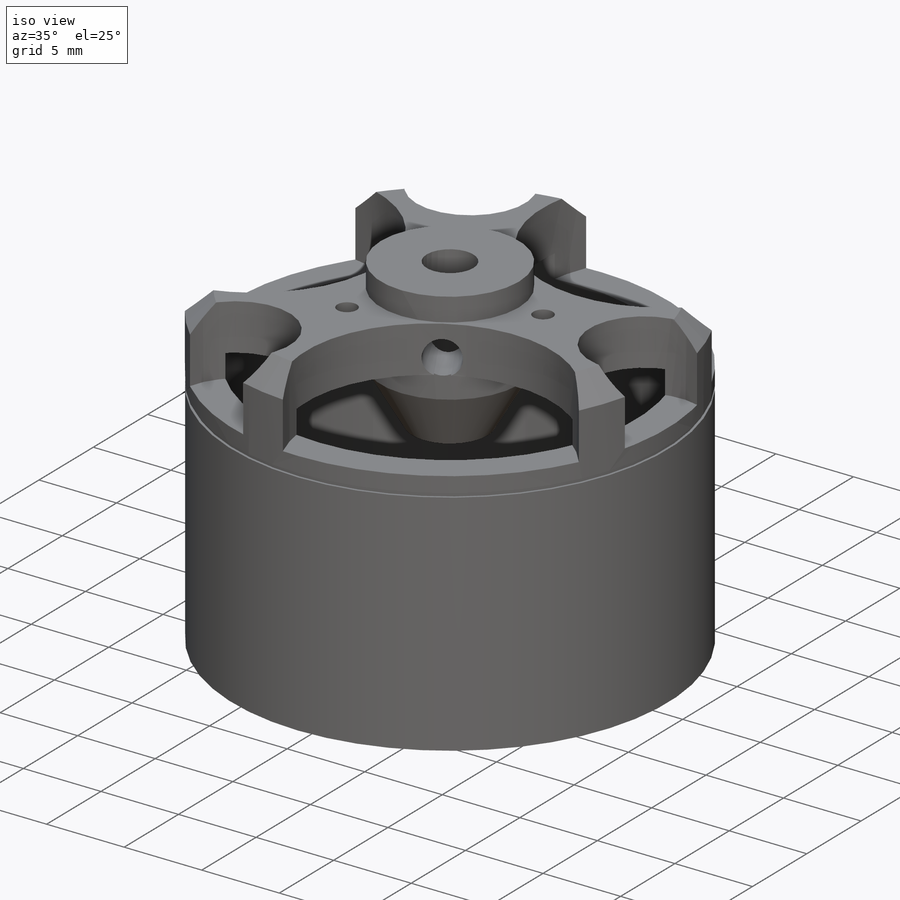
[diagram: iso view]
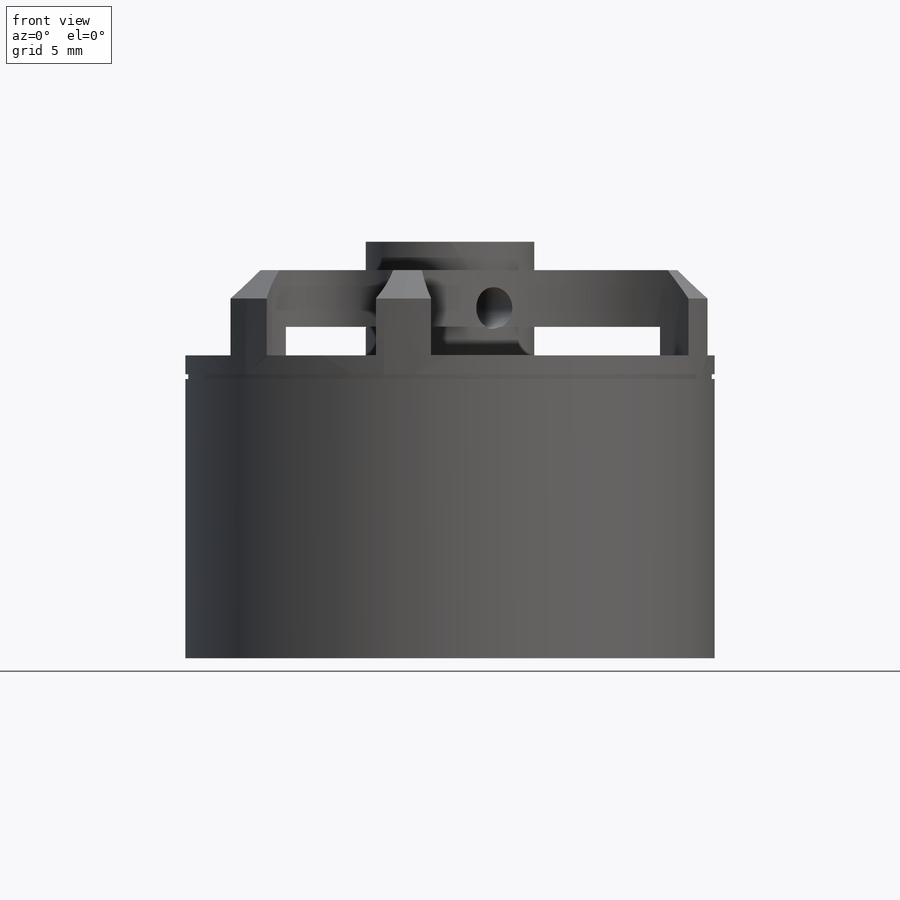
[diagram: front view]
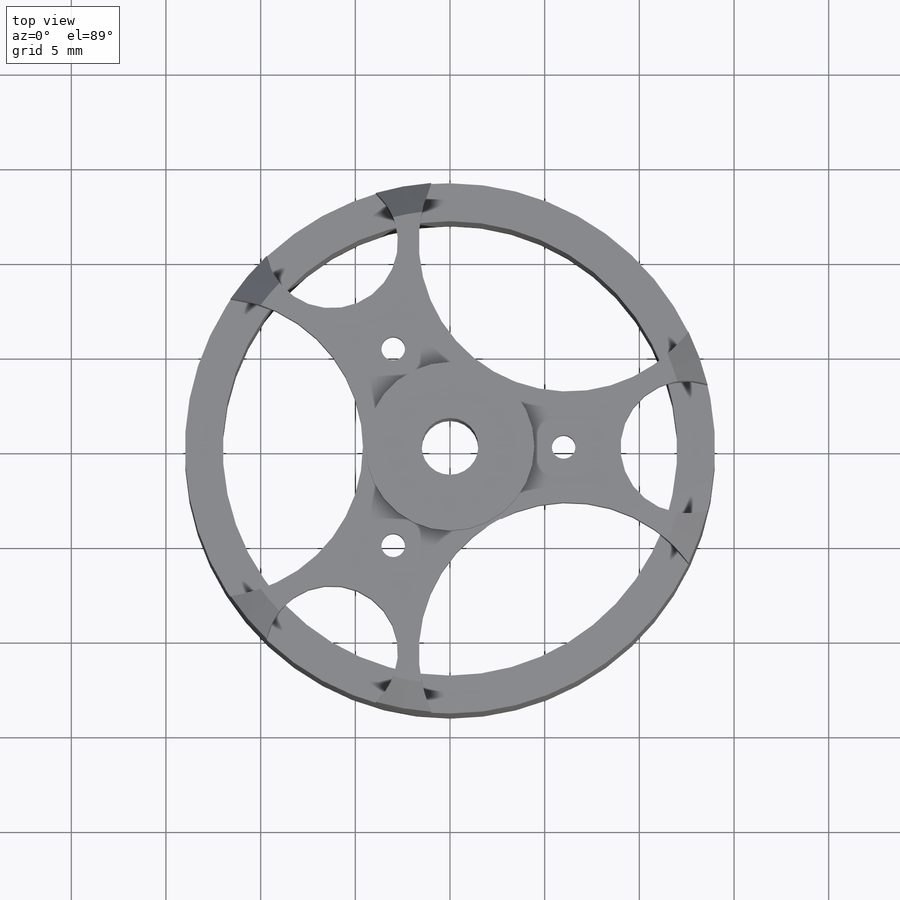
[diagram: top view]
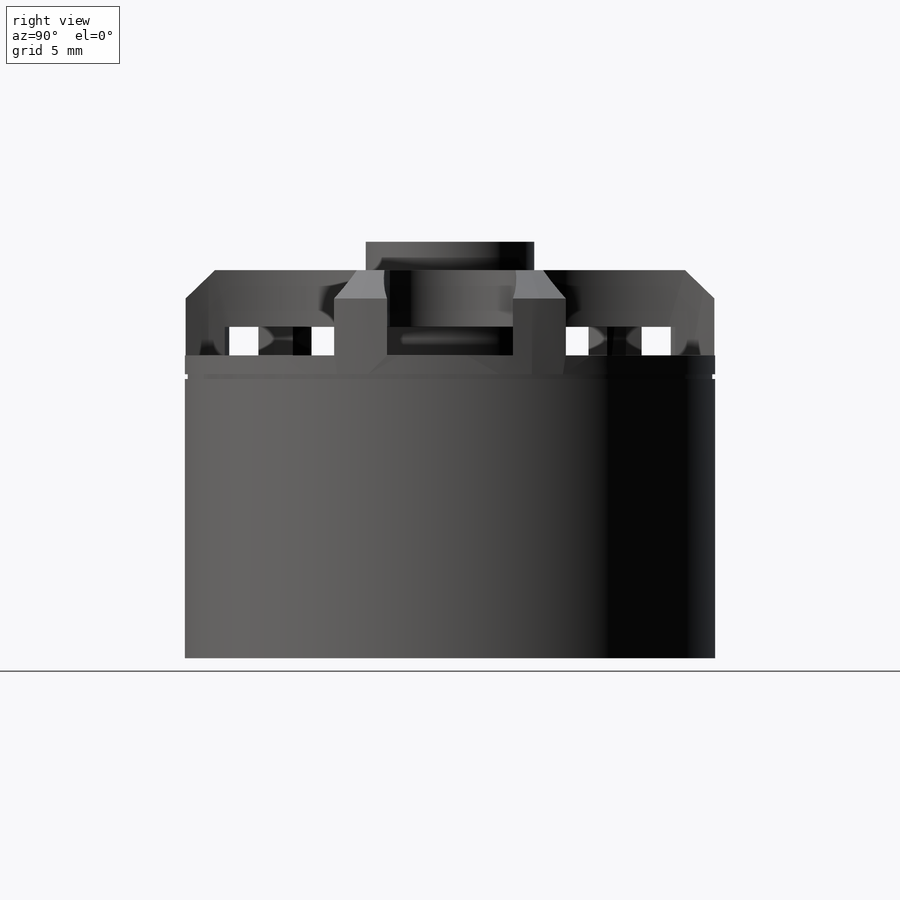
[diagram: right view]
SOLIDWORKS PART (.sldprt)
format: sldprt  version: not decoded by parser v0  size: 350,720 bytes
history: native  units: mm
features: sketch x12, extrude x3, cut_extrude x3, hole x2, material x1, chamfer x1, cut_revolve x1, plane x1 (+12 scaffold rows collapsed)
feature tree (36):
  scaffold x12  (default folders/planes/origin — collapsed)
  material  "Material <not specified>"
  sketch  "Sketch1"  dims[D1=28.0mm]
  extrude  "Boss-Extrude1"  Depth=20.5mm
  sketch  "Sketch2"  dims[D1=2.0mm]
  cut_extrude  "Cut-Extrude1"  Depth=3mm
  chamfer  "Chamfer1"  Distance=1.5mm Angle=45deg
  sketch  "Sketch3"  dims[D1=5.5mm D2=0.25mm D3=0.15mm]
  cut_revolve  "Cut-Revolve1"  Angle=360deg
  sketch  "Sketch4"  dims[D1=8.9mm]
  extrude  "Boss-Extrude2"  Depth=1.5mm
  sketch  "Sketch10"  dims[D1=0.0mm]
  extrude  "Boss-Extrude3"  Depth=3.5mm
  sketch  "Sketch5"  dims[D1=3.0mm]
  cut_extrude  "Cut-Extrude2"  [1 undecoded]
  sketch  "Sketch6"  dims[c1.D2=18.0mm c1.D4=8.0mm c1.D6=9.0mm c2.D2=15.8mm c2.D3=7.0mm c2.D1=6.0]
  cut_extrude  "Cut-Extrude3"  Depth=4.5mm
  hole  "M1.6x0.35 Tapped Hole1"  Diameter=1.25mm Depth=4.25mm
  sketch  "3DSketch1"  dims[c1.D1=~6.134452mm c1.D2=3.2mm c2.D1=6.0mm c2.D2=6.0mm c2.D3=6.0mm]
  sketch  "Sketch7"  dims[hole-wizard template sketch: 46 standard entries collapsed; hole parameters kept: c15.Tap Drill Dia.=1.25mm c15.Tap Drill Depth=4.25mm c15.D3=~14.816244mm c15.Drill Angle=118.0deg]
  plane  "Plane3"  Offset=3.5mm
  sketch  "Sketch16"
  hole  "M2 Clearance Hole4"  Diameter=2.2mm Depth=3.5mm
  sketch  "3DSketch2"
  sketch  "Sketch14"  dims[hole-wizard template sketch: 47 standard entries collapsed; hole parameters kept: c15.Hole Depth=3.5mm c15.D3=~14.816244mm c15.Drill Angle=118.0deg]
decode coverage: 19 of 22 modeling features carry decoded parameters
note: ~ marks probable driven/reference dimensions
note: 1 parameter value undecoded
note: suppression state not decoded; provenance and decode notes live in map.json
